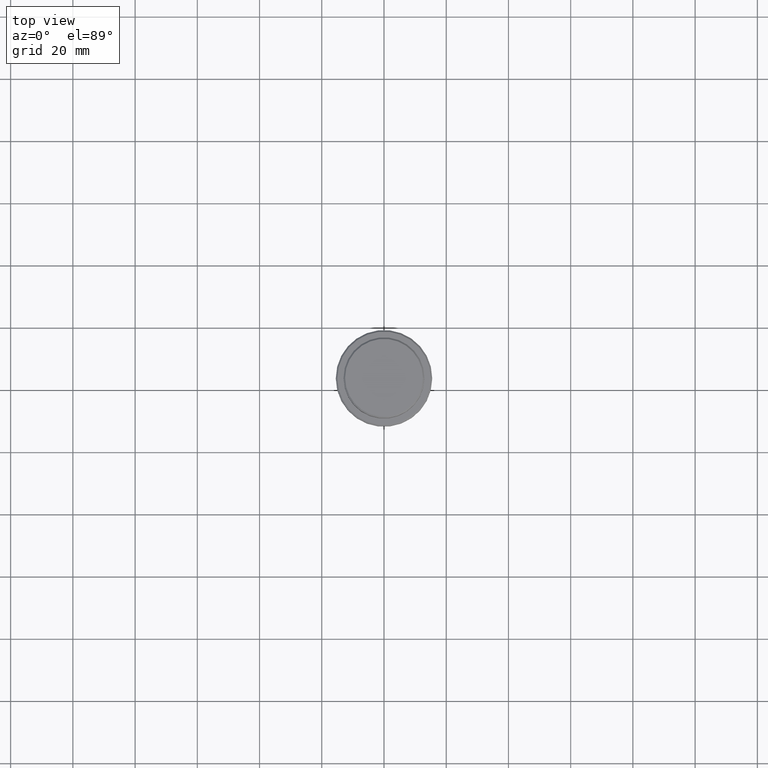
[diagram: clean part render]
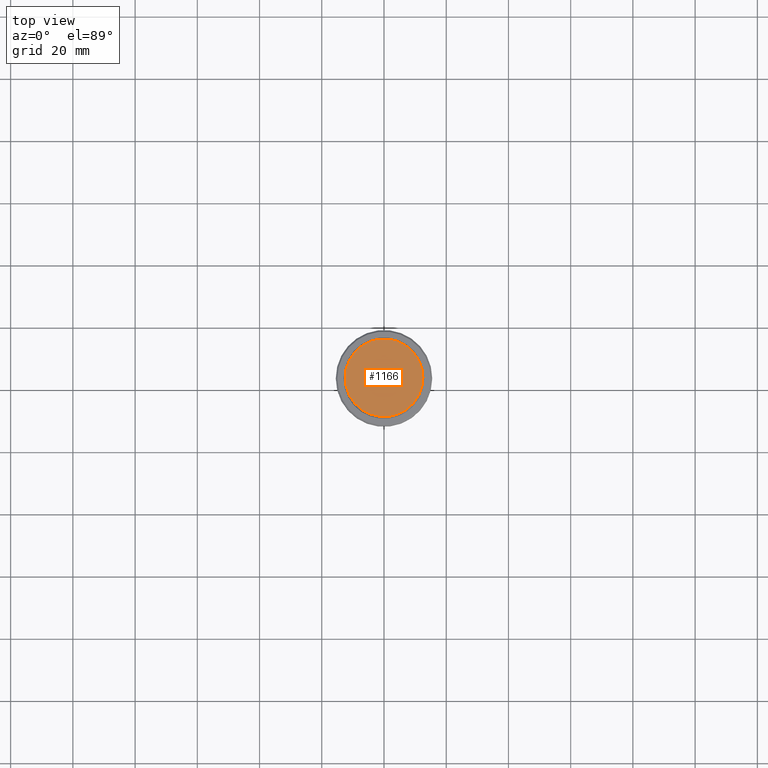
[diagram: same view with one face highlighted and labeled with its STEP entity id]
A machine part, top view. The second image highlights one B-rep face of the part: STEP entity #1166.
In plain terms, the highlighted planar face has unit normal (0, -0, 1).
Its self-contained STEP definition (entity closure, byte-faithful):
#89 = CARTESIAN_POINT ( 'NONE',  ( 0.000000000000000000, 0.000000000000000000, 0.000000000000000000 ) ) ;
#97 = DIRECTION ( 'NONE',  ( 1.000000000000000000, 0.000000000000000000, 0.000000000000000000 ) ) ;
#188 = AXIS2_PLACEMENT_3D ( 'NONE', #1180, #1396, #652 ) ;
#276 = CARTESIAN_POINT ( 'NONE',  ( 0.000000000000000000, 0.000000000000000000, 0.000000000000000000 ) ) ;
#309 = DIRECTION ( 'NONE',  ( -0.000000000000000000, -0.000000000000000000, 1.000000000000000000 ) ) ;
#386 = DIRECTION ( 'NONE',  ( 0.000000000000000000, -0.000000000000000000, 1.000000000000000000 ) ) ;
#521 = CARTESIAN_POINT ( 'NONE',  ( -12.49999999999998579, 0.000000000000000000, 0.000000000000000000 ) ) ;
#535 = CARTESIAN_POINT ( 'NONE',  ( 12.49999999999998579, 1.561424668912874125E-15, 0.000000000000000000 ) ) ;
#606 = EDGE_LOOP ( 'NONE', ( #1366, #747 ) ) ;
#652 = DIRECTION ( 'NONE',  ( 1.000000000000000000, 0.000000000000000000, 0.000000000000000000 ) ) ;
#702 = CIRCLE ( 'NONE', #188, 12.49999999999998579 ) ;
#719 = FACE_OUTER_BOUND ( 'NONE', #606, .T. ) ;
#721 = VERTEX_POINT ( 'NONE', #521 ) ;
#747 = ORIENTED_EDGE ( 'NONE', *, *, #1175, .T. ) ;
#810 = AXIS2_PLACEMENT_3D ( 'NONE', #276, #309, #97 ) ;
#965 = AXIS2_PLACEMENT_3D ( 'NONE', #89, #386, #1290 ) ;
#1072 = PLANE ( 'NONE',  #965 ) ;
#1116 = EDGE_CURVE ( 'NONE', #721, #1177, #702, .T. ) ;
#1148 = CIRCLE ( 'NONE', #810, 12.49999999999998579 ) ;
#1166 = ADVANCED_FACE ( 'NONE', ( #719 ), #1072, .T. ) ;
#1175 = EDGE_CURVE ( 'NONE', #1177, #721, #1148, .T. ) ;
#1177 = VERTEX_POINT ( 'NONE', #535 ) ;
#1180 = CARTESIAN_POINT ( 'NONE',  ( 0.000000000000000000, 0.000000000000000000, 0.000000000000000000 ) ) ;
#1290 = DIRECTION ( 'NONE',  ( 1.000000000000000000, 0.000000000000000000, 0.000000000000000000 ) ) ;
#1366 = ORIENTED_EDGE ( 'NONE', *, *, #1116, .T. ) ;
#1396 = DIRECTION ( 'NONE',  ( -0.000000000000000000, -0.000000000000000000, 1.000000000000000000 ) ) ;